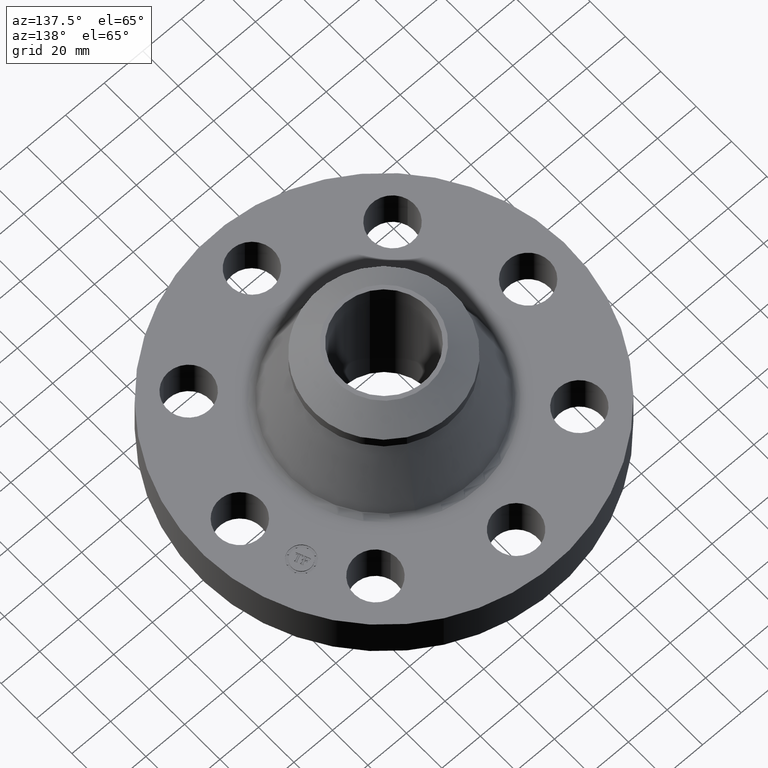
[diagram: clean part render]
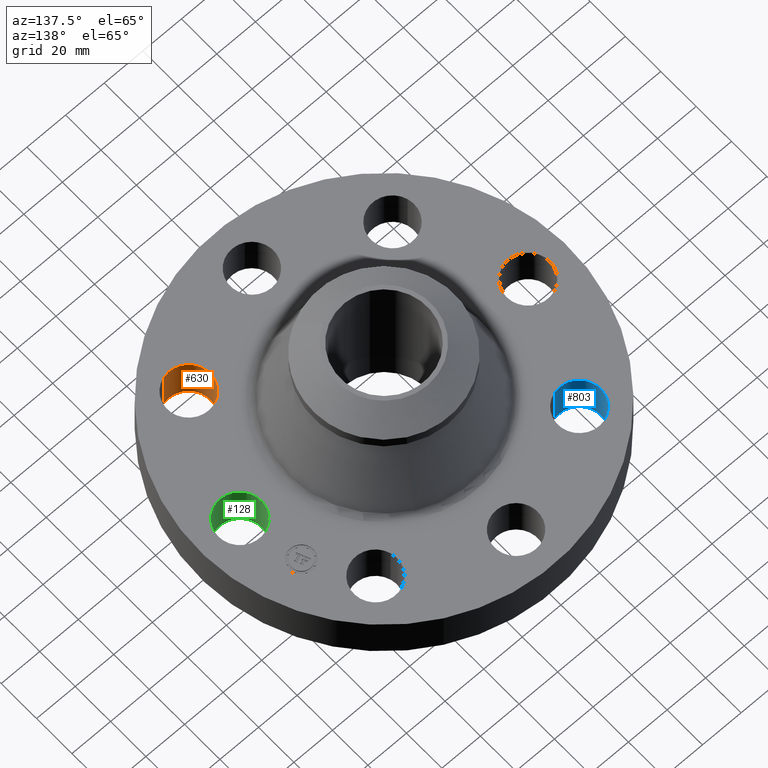
[diagram: same view with three faces highlighted in distinct colors, each labeled with its STEP entity id]
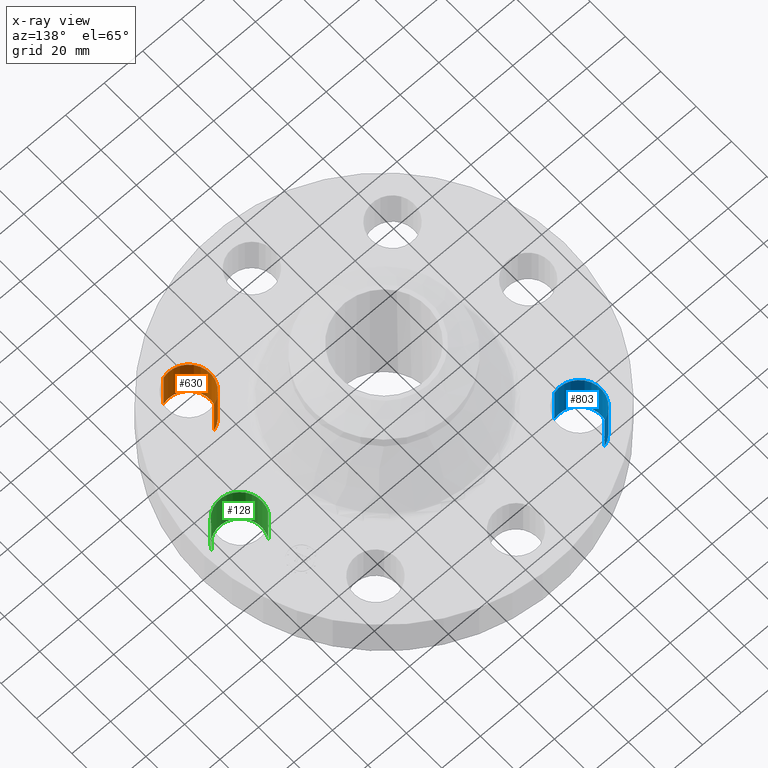
[diagram: x-ray of the same camera — body ghosted, the three highlighted faces saturated]
A machine part, auxiliary view with three faces highlighted in distinct colors.
The next image is the same camera in x-ray (body ghosted, the three faces saturated) — at least one of them is partly hidden behind the body in this view.
Their STEP definitions:

[orange] entity #630 — the highlighted cylindrical surface (edge-blend (fillet) strip) has radius 11.176 mm, axis along (0, -0, -1).
#192=AXIS2_PLACEMENT_3D('Circle Axis2P3D',#190,#191,$) ;
#362=AXIS2_PLACEMENT_3D('Circle Axis2P3D',#360,#361,$) ;
#622=AXIS2_PLACEMENT_3D('Cylinder Axis2P3D',#619,#620,#621) ;
#185=CARTESIAN_POINT('Vertex',(1.95501654299,-1.65669209951,0.)) ;
#187=CARTESIAN_POINT('Vertex',(2.20277133038,-2.50109577387,0.)) ;
#190=CARTESIAN_POINT('Axis2P3D Location',(2.07889393664,-2.0788939367,0.)) ;
#360=CARTESIAN_POINT('Axis2P3D Location',(2.07889393664,-2.07889393672,0.940000000004)) ;
#364=CARTESIAN_POINT('Vertex',(2.20277133038,-2.50109577388,0.940000000004)) ;
#366=CARTESIAN_POINT('Vertex',(1.955016543,-1.6566920995,0.939999999989)) ;
#595=CARTESIAN_POINT('Line Origine',(1.955016543,-1.6566920995,0.469999999993)) ;
#600=CARTESIAN_POINT('Line Origine',(2.2027713304,-2.5010957739,0.469999999993)) ;
#619=CARTESIAN_POINT('Axis2P3D Location',(2.0788939367,-2.0788939367,0.93606299213)) ;
#191=DIRECTION('Axis2P3D Direction',(0.,0.,-0.0393700787402)) ;
#361=DIRECTION('Axis2P3D Direction',(0.,0.,-0.0393700787402)) ;
#596=DIRECTION('Vector Direction',(0.,0.,-0.0393700787402)) ;
#601=DIRECTION('Vector Direction',(0.,0.,-0.0393700787402)) ;
#620=DIRECTION('Axis2P3D Direction',(0.,-0.,-0.0393700787402)) ;
#621=DIRECTION('Axis2P3D XDirection',(0.0110842335096,-0.0377775444876,0.)) ;
#597=VECTOR('Line Direction',#596,0.0393700787402) ;
#602=VECTOR('Line Direction',#601,0.0393700787402) ;
#625=ORIENTED_EDGE('',*,*,#604,.F.) ;
#626=ORIENTED_EDGE('',*,*,#194,.T.) ;
#627=ORIENTED_EDGE('',*,*,#599,.T.) ;
#628=ORIENTED_EDGE('',*,*,#368,.F.) ;
#630=ADVANCED_FACE('PartBody',(#629),#623,.F.) ;
#193=CIRCLE('generated circle',#192,0.439999999984) ;
#363=CIRCLE('generated circle',#362,0.439999999984) ;
#623=CYLINDRICAL_SURFACE('generated cylinder',#622,0.440000000002) ;
#194=EDGE_CURVE('',#188,#186,#193,.T.) ;
#368=EDGE_CURVE('',#365,#367,#363,.T.) ;
#599=EDGE_CURVE('',#186,#367,#598,.F.) ;
#604=EDGE_CURVE('',#188,#365,#603,.F.) ;
#624=EDGE_LOOP('',(#625,#626,#627,#628)) ;
#629=FACE_OUTER_BOUND('',#624,.T.) ;
#598=LINE('Line',#595,#597) ;
#603=LINE('Line',#600,#602) ;
#186=VERTEX_POINT('',#185) ;
#188=VERTEX_POINT('',#187) ;
#365=VERTEX_POINT('',#364) ;
#367=VERTEX_POINT('',#366) ;

[blue] entity #803 — the highlighted cylindrical surface (edge-blend (fillet) strip) has radius 11.176 mm, axis along (0, 0, -1).
#255=AXIS2_PLACEMENT_3D('Circle Axis2P3D',#253,#254,$) ;
#443=AXIS2_PLACEMENT_3D('Circle Axis2P3D',#441,#442,$) ;
#785=AXIS2_PLACEMENT_3D('Cylinder Axis2P3D',#782,#783,#784) ;
#253=CARTESIAN_POINT('Axis2P3D Location',(-2.07889393671,2.07889393668,0.)) ;
#257=CARTESIAN_POINT('Vertex',(-1.95501654299,1.65669209951,0.)) ;
#259=CARTESIAN_POINT('Vertex',(-2.20277133038,2.50109577386,0.)) ;
#436=CARTESIAN_POINT('Vertex',(-2.20277133038,2.50109577392,0.940000000004)) ;
#438=CARTESIAN_POINT('Vertex',(-1.955016543,1.6566920995,0.939999999989)) ;
#441=CARTESIAN_POINT('Axis2P3D Location',(-2.07889393669,2.07889393671,0.940000000004)) ;
#782=CARTESIAN_POINT('Axis2P3D Location',(-2.0788939367,2.0788939367,0.93606299213)) ;
#787=CARTESIAN_POINT('Line Origine',(-1.955016543,1.6566920995,0.469999999993)) ;
#792=CARTESIAN_POINT('Line Origine',(-2.2027713304,2.5010957739,0.469999999993)) ;
#254=DIRECTION('Axis2P3D Direction',(0.,0.,-0.0393700787402)) ;
#442=DIRECTION('Axis2P3D Direction',(0.,0.,-0.0393700787402)) ;
#783=DIRECTION('Axis2P3D Direction',(0.,0.,-0.0393700787402)) ;
#784=DIRECTION('Axis2P3D XDirection',(0.0110842335096,-0.0377775444876,0.)) ;
#788=DIRECTION('Vector Direction',(0.,0.,-0.0393700787402)) ;
#793=DIRECTION('Vector Direction',(0.,0.,-0.0393700787402)) ;
#789=VECTOR('Line Direction',#788,0.0393700787402) ;
#794=VECTOR('Line Direction',#793,0.0393700787402) ;
#798=ORIENTED_EDGE('',*,*,#791,.F.) ;
#799=ORIENTED_EDGE('',*,*,#261,.T.) ;
#800=ORIENTED_EDGE('',*,*,#796,.T.) ;
#801=ORIENTED_EDGE('',*,*,#445,.F.) ;
#803=ADVANCED_FACE('PartBody',(#802),#786,.F.) ;
#256=CIRCLE('generated circle',#255,0.439999999984) ;
#444=CIRCLE('generated circle',#443,0.440000000019) ;
#786=CYLINDRICAL_SURFACE('generated cylinder',#785,0.440000000002) ;
#261=EDGE_CURVE('',#258,#260,#256,.T.) ;
#445=EDGE_CURVE('',#439,#437,#444,.T.) ;
#791=EDGE_CURVE('',#258,#439,#790,.F.) ;
#796=EDGE_CURVE('',#260,#437,#795,.F.) ;
#797=EDGE_LOOP('',(#798,#799,#800,#801)) ;
#802=FACE_OUTER_BOUND('',#797,.T.) ;
#790=LINE('Line',#787,#789) ;
#795=LINE('Line',#792,#794) ;
#258=VERTEX_POINT('',#257) ;
#260=VERTEX_POINT('',#259) ;
#437=VERTEX_POINT('',#436) ;
#439=VERTEX_POINT('',#438) ;

[green] entity #128 — the highlighted cylindrical surface (edge-blend (fillet) strip) has radius 11.176 mm, axis along (0, -0, -1).
#86=AXIS2_PLACEMENT_3D('Cylinder Axis2P3D',#83,#84,#85) ;
#40=CARTESIAN_POINT('Line Origine',(2.55386367278,0.210947236987,0.469999999986)) ;
#44=CARTESIAN_POINT('Vertex',(2.55386367278,0.210947236988,-1.71042183042E-011)) ;
#46=CARTESIAN_POINT('Vertex',(2.55386367278,0.210947236987,0.939999999989)) ;
#53=CARTESIAN_POINT('Vertex',(3.32613632724,-0.210947236987,-1.71042183042E-011)) ;
#56=CARTESIAN_POINT('Line Origine',(3.32613632724,-0.210947236987,0.469999999986)) ;
#60=CARTESIAN_POINT('Vertex',(3.32613632724,-0.210947236984,0.939999999989)) ;
#83=CARTESIAN_POINT('Axis2P3D Location',(2.94000000001,0.,0.93606299213)) ;
#89=CARTESIAN_POINT('Control Point',(3.32613632724,-0.210947236987,-1.71042183042E-011)) ;
#90=CARTESIAN_POINT('Control Point',(3.29300081274,-0.271601389433,-1.62490003954E-011)) ;
#91=CARTESIAN_POINT('Control Point',(3.24795588326,-0.325749398821,-1.53937824867E-011)) ;
#92=CARTESIAN_POINT('Control Point',(3.1926953225,-0.370262840224,-1.45385296103E-011)) ;
#93=CARTESIAN_POINT('Control Point',(3.06769808393,-0.435223603166,-1.28280937928E-011)) ;
#94=CARTESIAN_POINT('Control Point',(2.92741808449,-0.448097302225,-1.11176579753E-011)) ;
#95=CARTESIAN_POINT('Control Point',(2.85686721097,-0.440497941251,-1.02624050989E-011)) ;
#96=CARTESIAN_POINT('Control Point',(2.72254661997,-0.398045742217,-8.55196928147E-012)) ;
#97=CARTESIAN_POINT('Control Point',(2.61425060119,-0.307955883249,-6.84153346399E-012)) ;
#98=CARTESIAN_POINT('Control Point',(2.56973715979,-0.252695322491,-5.98628058759E-012)) ;
#99=CARTESIAN_POINT('Control Point',(2.50477639684,-0.127698083922,-4.27584477012E-012)) ;
#100=CARTESIAN_POINT('Control Point',(2.49190269778,0.0125819155223,-2.56540895264E-012)) ;
#101=CARTESIAN_POINT('Control Point',(2.49950205876,0.0831327890369,-1.71015607624E-012)) ;
#102=CARTESIAN_POINT('Control Point',(2.52072815828,0.150293084541,-8.54938167505E-013)) ;
#103=CARTESIAN_POINT('Control Point',(2.55386367278,0.210947236987,2.79741234551E-016)) ;
#106=CARTESIAN_POINT('Control Point',(3.32613632724,-0.210947236987,0.939999999989)) ;
#107=CARTESIAN_POINT('Control Point',(3.29300081274,-0.271601389433,0.93999999999)) ;
#108=CARTESIAN_POINT('Control Point',(3.24795588326,-0.325749398821,0.939999999991)) ;
#109=CARTESIAN_POINT('Control Point',(3.1926953225,-0.370262840224,0.939999999992)) ;
#110=CARTESIAN_POINT('Control Point',(3.06769808393,-0.435223603166,0.939999999993)) ;
#111=CARTESIAN_POINT('Control Point',(2.92741808449,-0.448097302225,0.939999999994)) ;
#112=CARTESIAN_POINT('Control Point',(2.85686721097,-0.440497941251,0.939999999995)) ;
#113=CARTESIAN_POINT('Control Point',(2.72254661997,-0.398045742217,0.939999999997)) ;
#114=CARTESIAN_POINT('Control Point',(2.61425060119,-0.307955883249,0.939999999998)) ;
#115=CARTESIAN_POINT('Control Point',(2.56973715979,-0.252695322491,0.939999999999)) ;
#116=CARTESIAN_POINT('Control Point',(2.50477639684,-0.127698083922,0.94)) ;
#117=CARTESIAN_POINT('Control Point',(2.49190269778,0.0125819155223,0.940000000002)) ;
#118=CARTESIAN_POINT('Control Point',(2.49950205876,0.0831327890369,0.940000000003)) ;
#119=CARTESIAN_POINT('Control Point',(2.52072815828,0.150293084541,0.940000000003)) ;
#120=CARTESIAN_POINT('Control Point',(2.55386367278,0.210947236987,0.940000000004)) ;
#41=DIRECTION('Vector Direction',(0.,0.,-0.0393700787402)) ;
#57=DIRECTION('Vector Direction',(0.,0.,-0.0393700787402)) ;
#84=DIRECTION('Axis2P3D Direction',(0.,-0.,-0.0393700787402)) ;
#85=DIRECTION('Axis2P3D XDirection',(0.0345504945626,-0.0188750212049,0.)) ;
#42=VECTOR('Line Direction',#41,0.0393700787402) ;
#58=VECTOR('Line Direction',#57,0.0393700787402) ;
#123=ORIENTED_EDGE('',*,*,#62,.F.) ;
#124=ORIENTED_EDGE('',*,*,#104,.T.) ;
#125=ORIENTED_EDGE('',*,*,#48,.T.) ;
#126=ORIENTED_EDGE('',*,*,#121,.F.) ;
#128=ADVANCED_FACE('PartBody',(#127),#87,.F.) ;
#88=B_SPLINE_CURVE_WITH_KNOTS('',5,(#89,#90,#91,#92,#93,#94,#95,#96,#97,#98,#99,#100,#101,#102,#103),.UNSPECIFIED.,.F.,.U.,(6,3,3,3,6),(-17.5552197483,-8.77760987417,0.,8.77760987417,17.5552197483),.UNSPECIFIED.) ;
#105=B_SPLINE_CURVE_WITH_KNOTS('',5,(#106,#107,#108,#109,#110,#111,#112,#113,#114,#115,#116,#117,#118,#119,#120),.UNSPECIFIED.,.F.,.U.,(6,3,3,3,6),(-17.5552197483,-8.77760987417,0.,8.77760987417,17.5552197483),.UNSPECIFIED.) ;
#87=CYLINDRICAL_SURFACE('generated cylinder',#86,0.440000000002) ;
#48=EDGE_CURVE('',#45,#47,#43,.F.) ;
#62=EDGE_CURVE('',#54,#61,#59,.F.) ;
#104=EDGE_CURVE('',#54,#45,#88,.T.) ;
#121=EDGE_CURVE('',#61,#47,#105,.T.) ;
#122=EDGE_LOOP('',(#123,#124,#125,#126)) ;
#127=FACE_OUTER_BOUND('',#122,.T.) ;
#43=LINE('Line',#40,#42) ;
#59=LINE('Line',#56,#58) ;
#45=VERTEX_POINT('',#44) ;
#47=VERTEX_POINT('',#46) ;
#54=VERTEX_POINT('',#53) ;
#61=VERTEX_POINT('',#60) ;